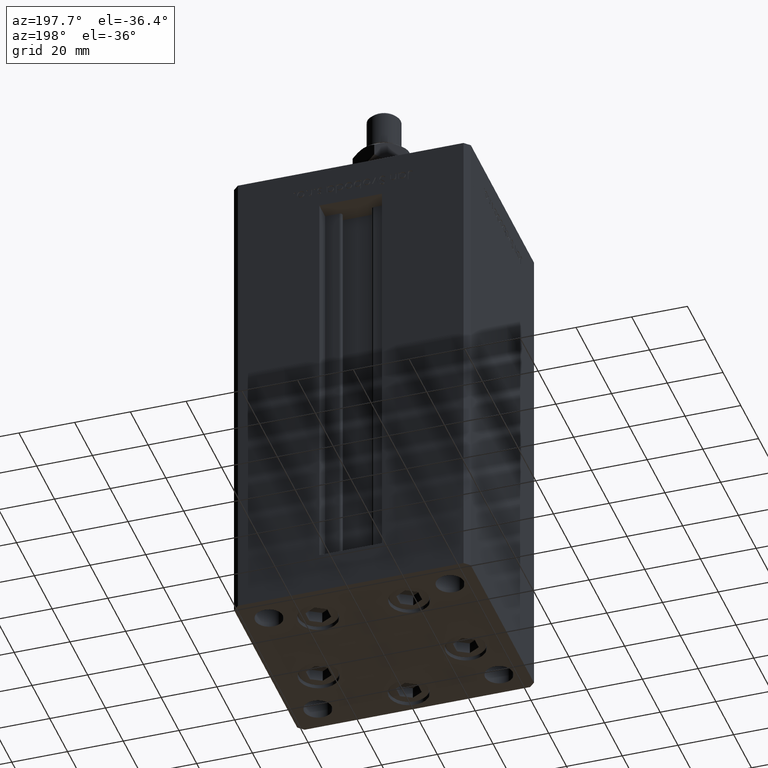
[diagram: clean part render]
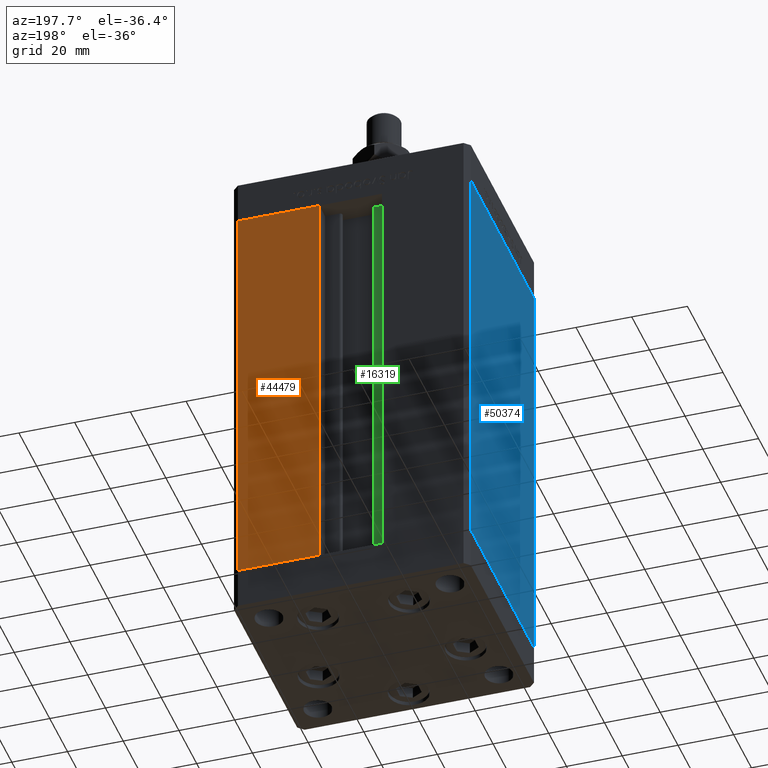
[diagram: same view with three faces highlighted in distinct colors, each labeled with its STEP entity id]
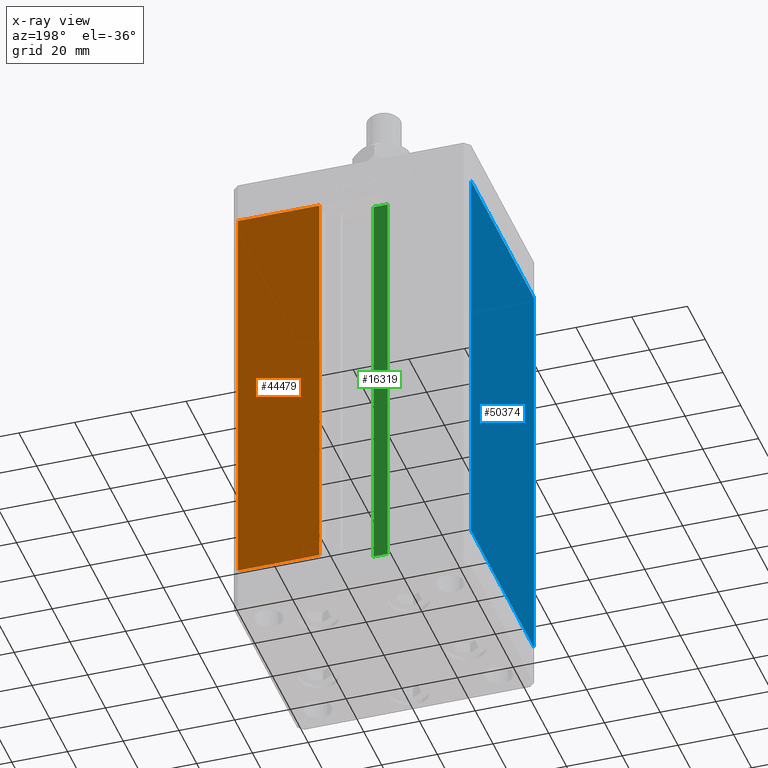
[diagram: x-ray of the same camera — body ghosted, the three highlighted faces saturated]
A machine part, auxiliary view with three faces highlighted in distinct colors.
The next image is the same camera in x-ray (body ghosted, the three faces saturated) — at least one of them is partly hidden behind the body in this view.
Their STEP definitions:

[orange] entity #44479 — the highlighted planar face has unit normal (-0, -1, 0).
#913 = CARTESIAN_POINT ( 'NONE',  ( 40.50000000000000000, 37.50000000000000711, 148.5000000000000000 ) ) ;
#4616 = LINE ( 'NONE', #24722, #4959 ) ;
#4959 = VECTOR ( 'NONE', #24988, 1000.000000000000000 ) ;
#6700 = AXIS2_PLACEMENT_3D ( 'NONE', #29024, #29296, #24130 ) ;
#7695 = VERTEX_POINT ( 'NONE', #9337 ) ;
#8114 = DIRECTION ( 'NONE',  ( 1.000000000000000000, 0.000000000000000000, 0.000000000000000000 ) ) ;
#9337 = CARTESIAN_POINT ( 'NONE',  ( 11.25000000000000000, 37.50000000000000000, 0.000000000000000000 ) ) ;
#10456 = VECTOR ( 'NONE', #50677, 1000.000000000000000 ) ;
#11099 = CARTESIAN_POINT ( 'NONE',  ( 11.25000000000000000, 37.50000000000000000, 0.000000000000000000 ) ) ;
#11211 = CARTESIAN_POINT ( 'NONE',  ( 11.24999999999999289, 37.50000000000000000, 148.5000000000000000 ) ) ;
#12685 = PLANE ( 'NONE',  #6700 ) ;
#14196 = VERTEX_POINT ( 'NONE', #26199 ) ;
#15703 = LINE ( 'NONE', #11099, #18175 ) ;
#18175 = VECTOR ( 'NONE', #36641, 1000.000000000000000 ) ;
#18250 = EDGE_CURVE ( 'NONE', #7695, #48482, #15703, .T. ) ;
#22234 = EDGE_CURVE ( 'NONE', #48865, #14196, #37141, .T. ) ;
#24130 = DIRECTION ( 'NONE',  ( 1.000000000000000000, -2.372271420139223331E-16, 0.000000000000000000 ) ) ;
#24722 = CARTESIAN_POINT ( 'NONE',  ( -11.25000000000000000, 37.50000000000000000, 0.000000000000000000 ) ) ;
#24988 = DIRECTION ( 'NONE',  ( -1.000000000000000000, 2.372271420139223331E-16, 0.000000000000000000 ) ) ;
#26199 = CARTESIAN_POINT ( 'NONE',  ( 40.50000000000000000, 37.50000000000000711, 0.000000000000000000 ) ) ;
#29024 = CARTESIAN_POINT ( 'NONE',  ( -11.25000000000000000, 37.50000000000000000, 148.5000000000000000 ) ) ;
#29296 = DIRECTION ( 'NONE',  ( -2.372271420139223331E-16, -1.000000000000000000, 0.000000000000000000 ) ) ;
#30620 = EDGE_LOOP ( 'NONE', ( #34160, #42193, #43708, #46292 ) ) ;
#32809 = VECTOR ( 'NONE', #8114, 1000.000000000000000 ) ;
#32841 = FACE_OUTER_BOUND ( 'NONE', #30620, .T. ) ;
#34160 = ORIENTED_EDGE ( 'NONE', *, *, #44217, .T. ) ;
#36641 = DIRECTION ( 'NONE',  ( -0.000000000000000000, -0.000000000000000000, 1.000000000000000000 ) ) ;
#36675 = LINE ( 'NONE', #41287, #32809 ) ;
#37141 = LINE ( 'NONE', #913, #10456 ) ;
#41287 = CARTESIAN_POINT ( 'NONE',  ( -11.25000000000000000, 37.50000000000000000, 148.5000000000000000 ) ) ;
#42193 = ORIENTED_EDGE ( 'NONE', *, *, #18250, .T. ) ;
#43708 = ORIENTED_EDGE ( 'NONE', *, *, #45695, .T. ) ;
#44217 = EDGE_CURVE ( 'NONE', #14196, #7695, #4616, .T. ) ;
#44479 = ADVANCED_FACE ( 'NONE', ( #32841 ), #12685, .F. ) ;
#45695 = EDGE_CURVE ( 'NONE', #48482, #48865, #36675, .T. ) ;
#46292 = ORIENTED_EDGE ( 'NONE', *, *, #22234, .T. ) ;
#47812 = CARTESIAN_POINT ( 'NONE',  ( 40.50000000000000000, 37.50000000000000711, 148.5000000000000000 ) ) ;
#48482 = VERTEX_POINT ( 'NONE', #11211 ) ;
#48865 = VERTEX_POINT ( 'NONE', #47812 ) ;
#50677 = DIRECTION ( 'NONE',  ( -0.000000000000000000, -0.000000000000000000, -1.000000000000000000 ) ) ;

[blue] entity #50374 — the highlighted planar face has unit normal (1, 0, 0).
#58 = CARTESIAN_POINT ( 'NONE',  ( -42.50000000000000711, 35.50000000000001421, 0.000000000000000000 ) ) ;
#668 = CARTESIAN_POINT ( 'NONE',  ( -42.50000000000000711, 35.50000000000001421, 0.000000000000000000 ) ) ;
#982 = ORIENTED_EDGE ( 'NONE', *, *, #40539, .T. ) ;
#1384 = VECTOR ( 'NONE', #17500, 1000.000000000000000 ) ;
#2046 = CARTESIAN_POINT ( 'NONE',  ( -42.50000000000000711, 35.50000000000001421, 148.5000000000000000 ) ) ;
#6091 = FACE_OUTER_BOUND ( 'NONE', #11029, .T. ) ;
#7478 = ORIENTED_EDGE ( 'NONE', *, *, #8910, .F. ) ;
#7869 = DIRECTION ( 'NONE',  ( 2.931927001650941360E-16, -1.000000000000000000, 0.000000000000000000 ) ) ;
#8012 = CARTESIAN_POINT ( 'NONE',  ( -42.50000000000000711, 35.50000000000001421, 148.5000000000000000 ) ) ;
#8910 = EDGE_CURVE ( 'NONE', #23704, #39976, #40776, .T. ) ;
#11029 = EDGE_LOOP ( 'NONE', ( #982, #23311, #7478, #37064 ) ) ;
#11662 = EDGE_CURVE ( 'NONE', #39976, #22225, #46960, .T. ) ;
#12379 = CARTESIAN_POINT ( 'NONE',  ( -42.49999999999998579, -35.50000000000000711, 0.000000000000000000 ) ) ;
#14235 = PLANE ( 'NONE',  #18599 ) ;
#14346 = VERTEX_POINT ( 'NONE', #58 ) ;
#16689 = LINE ( 'NONE', #668, #1384 ) ;
#17500 = DIRECTION ( 'NONE',  ( 2.931927001650941360E-16, -1.000000000000000000, 0.000000000000000000 ) ) ;
#18599 = AXIS2_PLACEMENT_3D ( 'NONE', #47701, #30849, #51245 ) ;
#20779 = DIRECTION ( 'NONE',  ( -0.000000000000000000, -0.000000000000000000, -1.000000000000000000 ) ) ;
#22009 = VECTOR ( 'NONE', #33915, 1000.000000000000000 ) ;
#22225 = VERTEX_POINT ( 'NONE', #12379 ) ;
#23311 = ORIENTED_EDGE ( 'NONE', *, *, #11662, .F. ) ;
#23704 = VERTEX_POINT ( 'NONE', #2046 ) ;
#25395 = VECTOR ( 'NONE', #7869, 1000.000000000000000 ) ;
#28935 = VECTOR ( 'NONE', #20779, 1000.000000000000000 ) ;
#29112 = EDGE_CURVE ( 'NONE', #23704, #14346, #40914, .T. ) ;
#30849 = DIRECTION ( 'NONE',  ( 1.000000000000000000, 2.931927001650941360E-16, -0.000000000000000000 ) ) ;
#33915 = DIRECTION ( 'NONE',  ( -0.000000000000000000, -0.000000000000000000, -1.000000000000000000 ) ) ;
#36701 = CARTESIAN_POINT ( 'NONE',  ( -42.50000000000000711, 35.50000000000001421, 148.5000000000000000 ) ) ;
#37064 = ORIENTED_EDGE ( 'NONE', *, *, #29112, .T. ) ;
#39976 = VERTEX_POINT ( 'NONE', #53570 ) ;
#40539 = EDGE_CURVE ( 'NONE', #14346, #22225, #16689, .T. ) ;
#40776 = LINE ( 'NONE', #36701, #25395 ) ;
#40914 = LINE ( 'NONE', #8012, #28935 ) ;
#46960 = LINE ( 'NONE', #47225, #22009 ) ;
#47225 = CARTESIAN_POINT ( 'NONE',  ( -42.49999999999998579, -35.50000000000000711, 148.5000000000000000 ) ) ;
#47701 = CARTESIAN_POINT ( 'NONE',  ( -42.50000000000000711, 35.50000000000001421, 148.5000000000000000 ) ) ;
#50374 = ADVANCED_FACE ( 'NONE', ( #6091 ), #14235, .F. ) ;
#51245 = DIRECTION ( 'NONE',  ( -2.931927001650941360E-16, 1.000000000000000000, 0.000000000000000000 ) ) ;
#53570 = CARTESIAN_POINT ( 'NONE',  ( -42.49999999999998579, -35.50000000000000711, 148.5000000000000000 ) ) ;

[green] entity #16319 — the highlighted planar face has unit normal (0, -1, 0).
#894 = EDGE_CURVE ( 'NONE', #7468, #21166, #3429, .T. ) ;
#3429 = LINE ( 'NONE', #7248, #20924 ) ;
#5635 = EDGE_LOOP ( 'NONE', ( #31366, #31234, #11216, #33019 ) ) ;
#7248 = CARTESIAN_POINT ( 'NONE',  ( 0.000000000000000000, 30.99999999999999289, 148.5000000000000000 ) ) ;
#7437 = EDGE_CURVE ( 'NONE', #24508, #21166, #28199, .T. ) ;
#7468 = VERTEX_POINT ( 'NONE', #17823 ) ;
#8583 = LINE ( 'NONE', #30077, #31394 ) ;
#10382 = CARTESIAN_POINT ( 'NONE',  ( -6.183333333333999704, 30.99999999999999289, 0.000000000000000000 ) ) ;
#11216 = ORIENTED_EDGE ( 'NONE', *, *, #7437, .T. ) ;
#13911 = DIRECTION ( 'NONE',  ( 1.000000000000000000, -0.000000000000000000, -0.000000000000000000 ) ) ;
#16319 = ADVANCED_FACE ( 'NONE', ( #47094 ), #35391, .F. ) ;
#17823 = CARTESIAN_POINT ( 'NONE',  ( -6.183333333333999704, 30.99999999999999289, 148.5000000000000000 ) ) ;
#20007 = DIRECTION ( 'NONE',  ( -1.000000000000000000, 0.000000000000000000, 0.000000000000000000 ) ) ;
#20924 = VECTOR ( 'NONE', #20007, 1000.000000000000000 ) ;
#21166 = VERTEX_POINT ( 'NONE', #24093 ) ;
#21851 = VECTOR ( 'NONE', #44788, 1000.000000000000000 ) ;
#23562 = EDGE_CURVE ( 'NONE', #43328, #7468, #8583, .T. ) ;
#24093 = CARTESIAN_POINT ( 'NONE',  ( -11.25000000000000000, 30.99999999999999289, 148.5000000000000000 ) ) ;
#24508 = VERTEX_POINT ( 'NONE', #26062 ) ;
#25160 = DIRECTION ( 'NONE',  ( -0.000000000000000000, -0.000000000000000000, 1.000000000000000000 ) ) ;
#25636 = AXIS2_PLACEMENT_3D ( 'NONE', #47894, #52250, #51442 ) ;
#26062 = CARTESIAN_POINT ( 'NONE',  ( -11.25000000000000000, 30.99999999999999289, 0.000000000000000000 ) ) ;
#28199 = LINE ( 'NONE', #32268, #21851 ) ;
#30077 = CARTESIAN_POINT ( 'NONE',  ( -6.183333333333999704, 30.99999999999999289, 0.000000000000000000 ) ) ;
#31234 = ORIENTED_EDGE ( 'NONE', *, *, #35432, .F. ) ;
#31366 = ORIENTED_EDGE ( 'NONE', *, *, #23562, .F. ) ;
#31394 = VECTOR ( 'NONE', #25160, 1000.000000000000000 ) ;
#32268 = CARTESIAN_POINT ( 'NONE',  ( -11.25000000000000000, 30.99999999999999289, 0.000000000000000000 ) ) ;
#33019 = ORIENTED_EDGE ( 'NONE', *, *, #894, .F. ) ;
#34163 = CARTESIAN_POINT ( 'NONE',  ( -6.183333333333999704, 30.99999999999999289, 0.000000000000000000 ) ) ;
#35391 = PLANE ( 'NONE',  #25636 ) ;
#35432 = EDGE_CURVE ( 'NONE', #24508, #43328, #38948, .T. ) ;
#38948 = LINE ( 'NONE', #10382, #44616 ) ;
#43328 = VERTEX_POINT ( 'NONE', #34163 ) ;
#44616 = VECTOR ( 'NONE', #13911, 1000.000000000000000 ) ;
#44788 = DIRECTION ( 'NONE',  ( -0.000000000000000000, -0.000000000000000000, 1.000000000000000000 ) ) ;
#47094 = FACE_OUTER_BOUND ( 'NONE', #5635, .T. ) ;
#47894 = CARTESIAN_POINT ( 'NONE',  ( -6.183333333333999704, 30.99999999999999289, 0.000000000000000000 ) ) ;
#51442 = DIRECTION ( 'NONE',  ( 0.000000000000000000, 0.000000000000000000, -1.000000000000000000 ) ) ;
#52250 = DIRECTION ( 'NONE',  ( 0.000000000000000000, -1.000000000000000000, -0.000000000000000000 ) ) ;